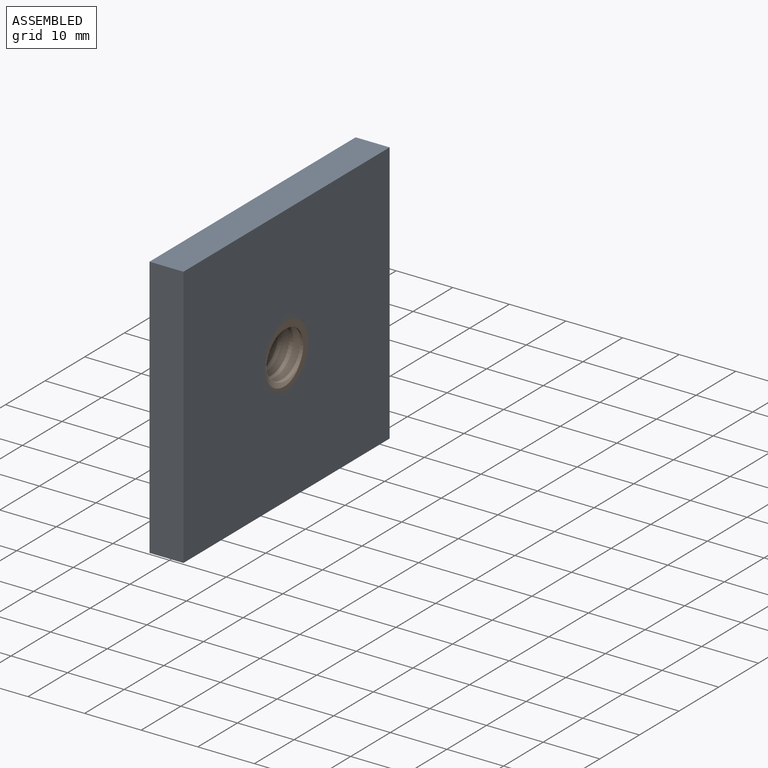
[diagram: assembled view]
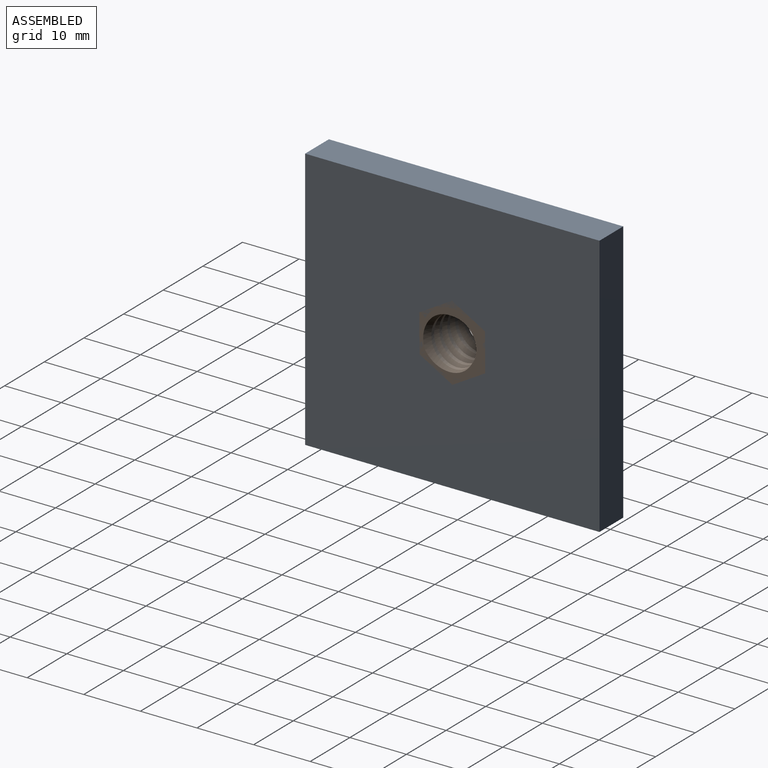
[diagram: assembled view, second angle]
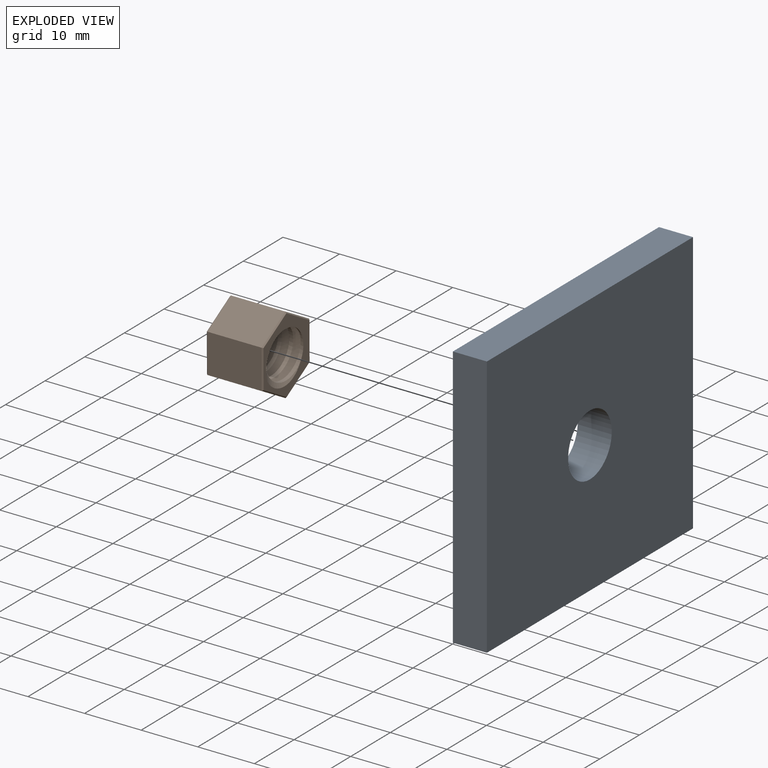
[diagram: exploded view]
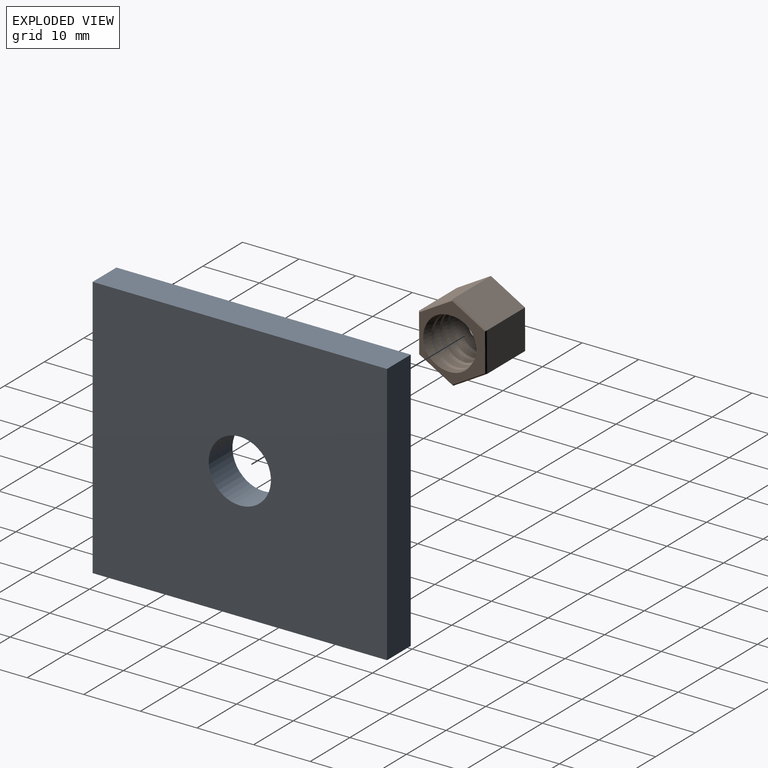
[diagram: exploded view, second angle]
ASSEMBLY  parts=2 mates=2
PART A: 7 faces, bbox 46.5x52x6 mm
  f0: plane 52x6mm, normal (1,0,0), area 312mm2, adj f1,f3,f4,f5
  f1: plane 46.5x6mm, normal (0,1,0), area 279mm2, adj f0,f2,f4,f5
  f2: plane 52x6mm, normal (-1,0,0), area 312mm2, adj f1,f3,f4,f5
  f3: plane 46.5x6mm, normal (0,-1,0), area 279mm2, adj f0,f2,f4,f5
  f4: plane 52x46.5mm, normal (0,0,1), area 2323mm2, adj f0,f1,f2,f3,f6
  f5: plane 52x46.5mm, normal (0,0,-1), area 2323mm2, adj f0,f1,f2,f3,f6
  f6: cylinder r=5.5mm len=11mm, axis (0,0,1), area 207.3mm2, adj f4,f5
PART B: 23 faces, bbox 12.3x13x14.5 mm
  f0: cylinder r=4.25mm len=10mm, axis (1,0,0), area 93.9mm2, adj f7,f8,f21,f22
  f1: plane 9.6x5.98mm, normal (0,-0.5,0.86), area 66.5mm2, adj f2,f6,f14,f18
  f2: plane 9.6x6.93mm, normal (0,-1,-0.01), area 66.5mm2, adj f1,f3,f12,f16
  f3: plane 9.6x6.02mm, normal (0,-0.5,-0.87), area 66.5mm2, adj f2,f4,f10,f15
  f4: plane 9.6x5.98mm, normal (0,0.5,-0.86), area 66.5mm2, adj f3,f5,f9,f17
  f5: plane 9.6x6.93mm, normal (0,1,0.01), area 66.5mm2, adj f4,f6,f11,f19
  f6: plane 9.6x6.02mm, normal (0,0.5,0.87), area 66.5mm2, adj f1,f5,f13,f20
  f7: plane 14x12.24mm, normal (-1,0,0), area 49.2mm2, adj f0,f9,f10,f11,f12,f13,f14,f21
  f8: plane 14x12.24mm, normal (1,0,0), area 49.2mm2, adj f0,f15,f16,f17,f18,f19,f20,f21
  f9: plane 5.98x3.61mm, normal (-0.71,0.36,-0.61), area 1.9mm2, adj f4,f7,f10,f11
  f10: plane 6.02x3.55mm, normal (-0.71,-0.35,-0.61), area 1.9mm2, adj f3,f7,f9,f12
  f11: plane 6.93x0.23mm, normal (-0.71,0.71,0), area 1.9mm2, adj f5,f7,f9,f13
  f12: plane 6.93x0.23mm, normal (-0.71,-0.71,0), area 1.9mm2, adj f2,f7,f10,f14
  f13: plane 6.02x3.55mm, normal (-0.71,0.35,0.61), area 1.9mm2, adj f6,f7,f11,f14
  f14: plane 5.98x3.61mm, normal (-0.71,-0.36,0.61), area 1.9mm2, adj f1,f7,f12,f13
  f15: plane 6.02x3.55mm, normal (0.71,-0.35,-0.61), area 1.9mm2, adj f3,f8,f16,f17
  f16: plane 6.93x0.23mm, normal (0.71,-0.71,0), area 1.9mm2, adj f2,f8,f15,f18
  f17: plane 5.98x3.61mm, normal (0.71,0.36,-0.61), area 1.9mm2, adj f4,f8,f15,f19
  f18: plane 5.98x3.61mm, normal (0.71,-0.36,0.61), area 1.9mm2, adj f1,f8,f16,f20
  f19: plane 6.93x0.23mm, normal (0.71,0.71,0), area 1.9mm2, adj f5,f8,f17,f20
  f20: plane 6.02x3.55mm, normal (0.71,0.35,0.61), area 1.9mm2, adj f6,f8,f18,f19
  f21: bspline ~12.41x11.65mm, area 196.6mm2, adj f0,f7,f8,f22
  f22: bspline ~12.41x11.32mm, area 196.5mm2, adj f0,f7,f8,f21
PLACE A rot(axis=(0,1,0),90deg) t=(-12.51,-55.47,8.86)mm
PLACE B t=(-6.51,-55.47,8.86)mm
MATE parallel B.f0 <-> A.f6  axis (-1,0,0) through (-16.51,-55.47,8.86)mm
MATE parallel B.f0 <-> A.f6  axis (1,0,0) through (-6.51,-55.47,8.86)mm
